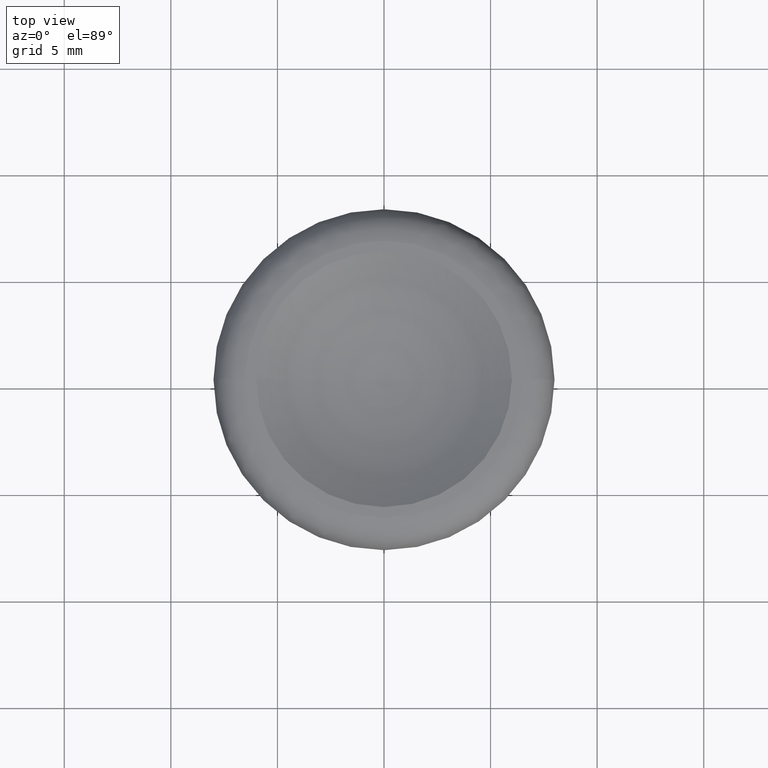
[diagram: clean part render]
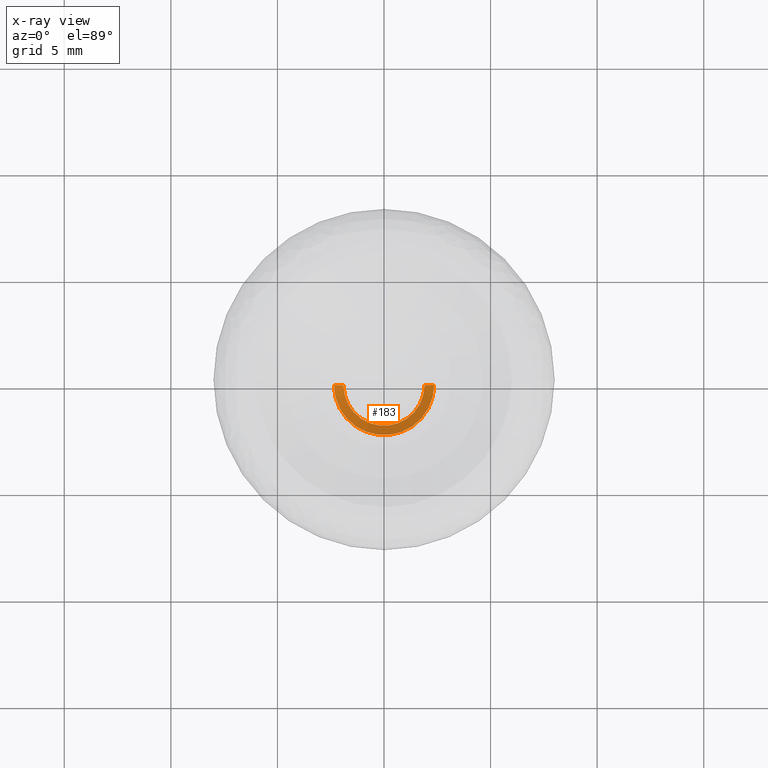
[diagram: x-ray — body ghosted, one internal face saturated and labeled with its STEP entity id]
A machine part, top view, then the same camera in x-ray: the body is ghosted and one INTERNAL B-rep face — a face not visible from any outside direction — is saturated and labeled: STEP entity #183.
In plain terms, the highlighted face is a freeform B-spline surface patch.
Its self-contained STEP definition (entity closure, byte-faithful):
#183=ADVANCED_FACE('',(#912),#911,.T.);
#911=( BOUNDED_SURFACE() B_SPLINE_SURFACE( 2,1,((#1602,#1603),(#1604,#1605),(#1606,#1607),(#1608,#1609),(#1610,#1611)), .UNSPECIFIED.,.F.,.F.,.F.) B_SPLINE_SURFACE_WITH_KNOTS((3,2,3),(2,2),(0.00000000000E+00,5.00000000000E-01,1.00000000000E+00),(0.00000000000E+00,1.00000000000E+00), .UNSPECIFIED. ) GEOMETRIC_REPRESENTATION_ITEM() RATIONAL_B_SPLINE_SURFACE(((1.00000000000E+00,1.00000000000E+00),(7.07106781187E-01,7.07106781187E-01),(1.00000000000E+00,1.00000000000E+00),(7.07106781187E-01,7.07106781187E-01),(1.00000000000E+00,1.00000000000E+00))) REPRESENTATION_ITEM('') SURFACE() );
#912=FACE_OUTER_BOUND('',#1612,.T.);
#1602=CARTESIAN_POINT('',(-1.90000000000E+00,-4.65365783676E-16,-6.90000000000E+00));
#1603=CARTESIAN_POINT('',(-2.35000000000E+00,-5.75583995599E-16,-6.40000000000E+00));
#1604=CARTESIAN_POINT('',(-1.90000000000E+00,-1.90000000000E+00,-6.90000000000E+00));
#1605=CARTESIAN_POINT('',(-2.35000000000E+00,-2.35000000000E+00,-6.40000000000E+00));
#1606=CARTESIAN_POINT('',(3.49024337757E-16,-1.90000000000E+00,-6.90000000000E+00));
#1607=CARTESIAN_POINT('',(4.31687996699E-16,-2.35000000000E+00,-6.40000000000E+00));
#1608=CARTESIAN_POINT('',(1.90000000000E+00,-1.90000000000E+00,-6.90000000000E+00));
#1609=CARTESIAN_POINT('',(2.35000000000E+00,-2.35000000000E+00,-6.40000000000E+00));
#1610=CARTESIAN_POINT('',(1.90000000000E+00,2.32682891838E-16,-6.90000000000E+00));
#1611=CARTESIAN_POINT('',(2.35000000000E+00,2.87791997800E-16,-6.40000000000E+00));
#1612=EDGE_LOOP('',(#2054,#2055,#2056,#2057));
#2054=ORIENTED_EDGE('',*,*,#2286,.T.);
#2055=ORIENTED_EDGE('',*,*,#2287,.F.);
#2056=ORIENTED_EDGE('',*,*,#2288,.F.);
#2057=ORIENTED_EDGE('',*,*,#2289,.T.);
#2286=EDGE_CURVE('',#3529,#3530,#3531,.T.);
#2287=EDGE_CURVE('',#3537,#3530,#3538,.T.);
#2288=EDGE_CURVE('',#3544,#3537,#3545,.T.);
#2289=EDGE_CURVE('',#3544,#3529,#3551,.T.);
#3529=VERTEX_POINT('',#4456);
#3530=VERTEX_POINT('',#4457);
#3531=CIRCLE('',#4461,2.35000000000E+00);
#3537=VERTEX_POINT('',#4462);
#3538=(BOUNDED_CURVE() B_SPLINE_CURVE(1,(#4463,#4464),.UNSPECIFIED.,.F.,.F.) B_SPLINE_CURVE_WITH_KNOTS((2,2),(0.00000000000E+00,1.00000000000E+00),.UNSPECIFIED.) CURVE() GEOMETRIC_REPRESENTATION_ITEM() RATIONAL_B_SPLINE_CURVE((1.00000000000E+00,1.00000000000E+00)) REPRESENTATION_ITEM('') );
#3544=VERTEX_POINT('',#4465);
#3545=CIRCLE('',#4469,1.90000000000E+00);
#3551=(BOUNDED_CURVE() B_SPLINE_CURVE(1,(#4470,#4471),.UNSPECIFIED.,.F.,.F.) B_SPLINE_CURVE_WITH_KNOTS((2,2),(0.00000000000E+00,1.00000000000E+00),.UNSPECIFIED.) CURVE() GEOMETRIC_REPRESENTATION_ITEM() RATIONAL_B_SPLINE_CURVE((7.50000000000E-01,7.50000000000E-01)) REPRESENTATION_ITEM('') );
#4456=CARTESIAN_POINT('',(2.35000000000E+00,0.00000000000E+00,-6.40000000000E+00));
#4457=CARTESIAN_POINT('',(-2.35000000000E+00,0.00000000000E+00,-6.40000000000E+00));
#4458=CARTESIAN_POINT('',(0.00000000000E+00,0.00000000000E+00,-6.40000000000E+00));
#4459=DIRECTION('',(-0.00000000000E+00,0.00000000000E+00,-1.00000000000E+00));
#4460=DIRECTION('',(-1.00000000000E+00,-1.22460635382E-16,0.00000000000E+00));
#4461=AXIS2_PLACEMENT_3D('',#4458,#4459,#4460);
#4462=CARTESIAN_POINT('',(-1.90000000000E+00,0.00000000000E+00,-6.90000000000E+00));
#4463=CARTESIAN_POINT('',(-1.90000000000E+00,-4.65350414453E-16,-6.90000000000E+00));
#4464=CARTESIAN_POINT('',(-2.35000000000E+00,-5.75564986297E-16,-6.40000000000E+00));
#4465=CARTESIAN_POINT('',(1.90000000000E+00,2.22044604925E-16,-6.90000000000E+00));
#4466=CARTESIAN_POINT('',(0.00000000000E+00,0.00000000000E+00,-6.90000000000E+00));
#4467=DIRECTION('',(-0.00000000000E+00,0.00000000000E+00,-1.00000000000E+00));
#4468=DIRECTION('',(-1.00000000000E+00,-1.22460635382E-16,0.00000000000E+00));
#4469=AXIS2_PLACEMENT_3D('',#4466,#4467,#4468);
#4470=CARTESIAN_POINT('',(1.90000000000E+00,5.18104078158E-16,-6.90000000000E+00));
#4471=CARTESIAN_POINT('',(2.35000000000E+00,7.40148683083E-16,-6.40000000000E+00));